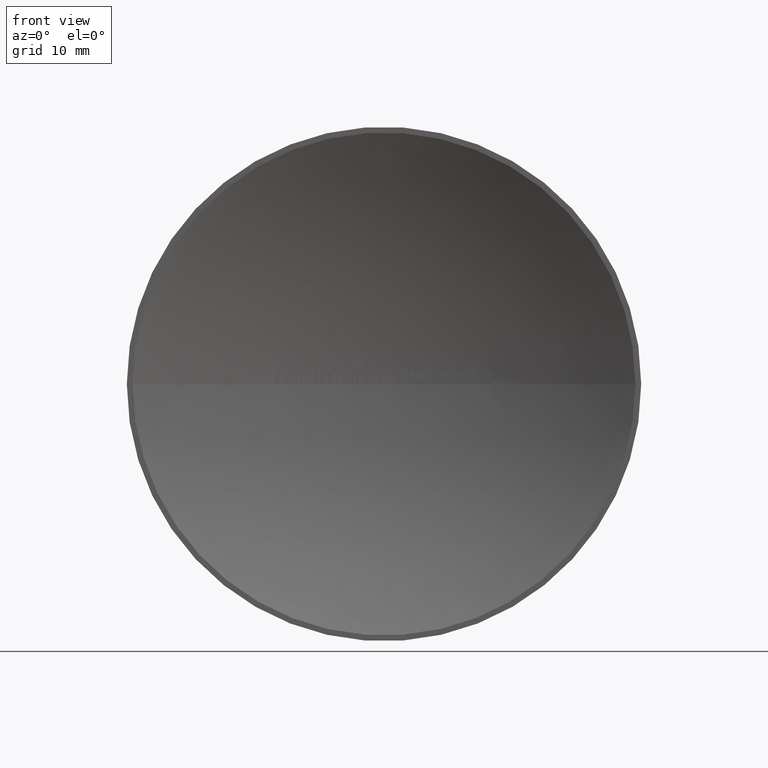
[diagram: clean part render]
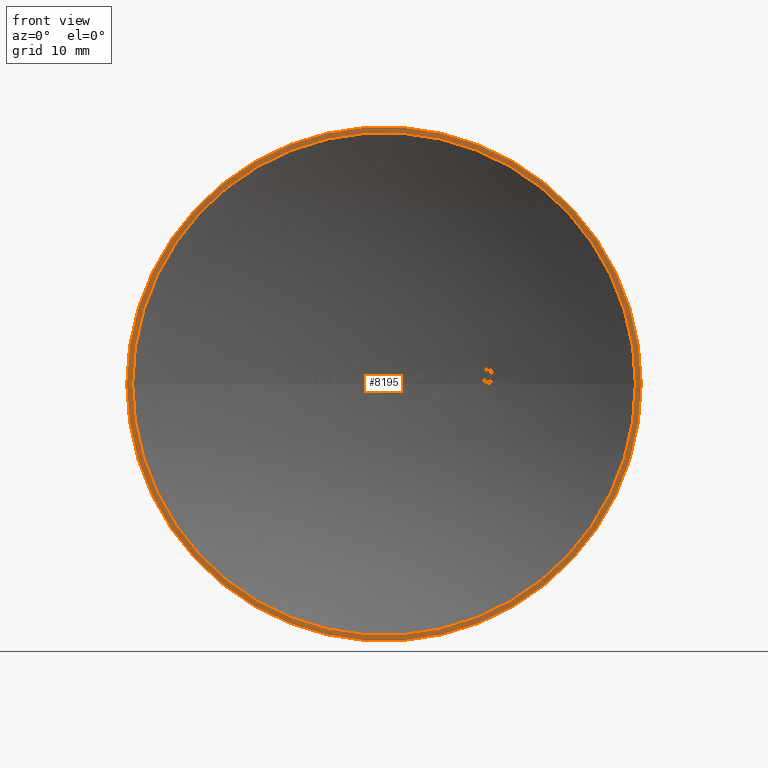
[diagram: same view with one face highlighted and labeled with its STEP entity id]
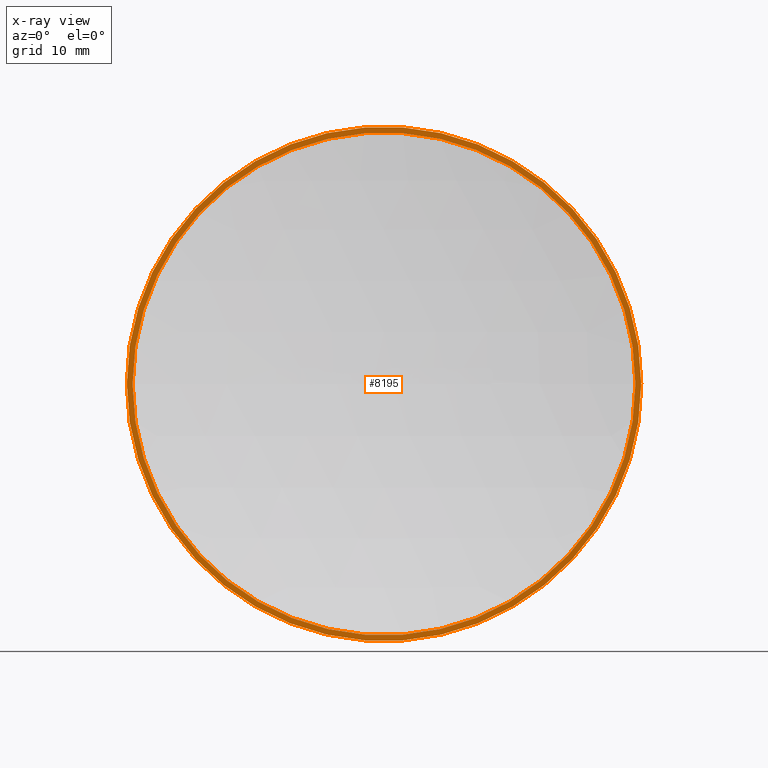
[diagram: x-ray of the same camera — body ghosted, the highlighted face saturated]
A machine part, front view. The second image highlights one B-rep face of the part: STEP entity #8195.
The next image is the same camera in x-ray: the body ghosted, the highlighted face saturated — about 0% of this face is hidden behind the body in this view.
In plain terms, the highlighted planar face has unit normal (-0, -1, 0).
Its self-contained STEP definition (entity closure, byte-faithful):
#353 = DIRECTION ( 'NONE',  ( 1.000000000000000000, -6.932614350277812000E-015, 0.0000000000000000000 ) ) ;
#362 = CIRCLE ( 'NONE', #9243, 21.20000000000003500 ) ;
#800 = CARTESIAN_POINT ( 'NONE',  ( 21.19999999999999900, -3.856737457803261500E-015, 0.0000000000000000000 ) ) ;
#1027 = VERTEX_POINT ( 'NONE', #800 ) ;
#1397 = CIRCLE ( 'NONE', #1577, 20.72293415518182500 ) ;
#1483 = EDGE_LOOP ( 'NONE', ( #8822, #2661 ) ) ;
#1577 = AXIS2_PLACEMENT_3D ( 'NONE', #5094, #7981, #353 ) ;
#1698 = FACE_BOUND ( 'NONE', #3651, .T. ) ;
#2178 = CARTESIAN_POINT ( 'NONE',  ( -21.20000000000007000, 2.900861109939764400E-013, 2.596251214192394300E-015 ) ) ;
#2451 = AXIS2_PLACEMENT_3D ( 'NONE', #11081, #8279, #2630 ) ;
#2514 = CARTESIAN_POINT ( 'NONE',  ( -3.466307175138799600E-014, 1.431146867680865900E-013, 0.0000000000000000000 ) ) ;
#2630 = DIRECTION ( 'NONE',  ( 1.000000000000000000, -6.932614350277811200E-015, 0.0000000000000000000 ) ) ;
#2661 = ORIENTED_EDGE ( 'NONE', *, *, #9082, .T. ) ;
#2777 = CARTESIAN_POINT ( 'NONE',  ( -3.466307175138799600E-014, 1.431146867680865900E-013, 0.0000000000000000000 ) ) ;
#3182 = AXIS2_PLACEMENT_3D ( 'NONE', #2514, #3513, #9120 ) ;
#3513 = DIRECTION ( 'NONE',  ( -6.932614350277811200E-015, -1.000000000000000000, -0.0000000000000000000 ) ) ;
#3651 = EDGE_LOOP ( 'NONE', ( #11784, #6313 ) ) ;
#3948 = DIRECTION ( 'NONE',  ( 1.000000000000000000, -6.932614350277812000E-015, 0.0000000000000000000 ) ) ;
#4584 = EDGE_CURVE ( 'NONE', #6435, #11934, #5396, .T. ) ;
#4808 = AXIS2_PLACEMENT_3D ( 'NONE', #8643, #9596, #3948 ) ;
#5073 = VERTEX_POINT ( 'NONE', #2178 ) ;
#5094 = CARTESIAN_POINT ( 'NONE',  ( -3.466307175138804000E-014, 1.370431546021677600E-013, 0.0000000000000000000 ) ) ;
#5227 = FACE_OUTER_BOUND ( 'NONE', #1483, .T. ) ;
#5396 = CIRCLE ( 'NONE', #4808, 20.72293415518182500 ) ;
#5427 = PLANE ( 'NONE',  #2451 ) ;
#6313 = ORIENTED_EDGE ( 'NONE', *, *, #8952, .F. ) ;
#6435 = VERTEX_POINT ( 'NONE', #7774 ) ;
#7418 = CIRCLE ( 'NONE', #3182, 21.20000000000003500 ) ;
#7774 = CARTESIAN_POINT ( 'NONE',  ( -20.72293415518153000, 2.826009576832199400E-013, 0.0000000000000000000 ) ) ;
#7981 = DIRECTION ( 'NONE',  ( -6.932614350277811200E-015, -1.000000000000000000, -0.0000000000000000000 ) ) ;
#8195 = ADVANCED_FACE ( 'NONE', ( #5227, #1698 ), #5427, .T. ) ;
#8279 = DIRECTION ( 'NONE',  ( -6.932614350277811200E-015, -1.000000000000000000, 0.0000000000000000000 ) ) ;
#8339 = DIRECTION ( 'NONE',  ( 1.000000000000000000, -6.932614350277812000E-015, 0.0000000000000000000 ) ) ;
#8643 = CARTESIAN_POINT ( 'NONE',  ( -3.466307175138804000E-014, 1.370431546021677600E-013, 0.0000000000000000000 ) ) ;
#8822 = ORIENTED_EDGE ( 'NONE', *, *, #10744, .T. ) ;
#8952 = EDGE_CURVE ( 'NONE', #11934, #6435, #1397, .T. ) ;
#9082 = EDGE_CURVE ( 'NONE', #5073, #1027, #362, .T. ) ;
#9120 = DIRECTION ( 'NONE',  ( 1.000000000000000000, -6.932614350277812000E-015, 0.0000000000000000000 ) ) ;
#9243 = AXIS2_PLACEMENT_3D ( 'NONE', #2777, #12045, #8339 ) ;
#9265 = CARTESIAN_POINT ( 'NONE',  ( 20.72293415518179000, -3.310478050953976700E-015, -2.537827498208437800E-015 ) ) ;
#9596 = DIRECTION ( 'NONE',  ( -6.932614350277811200E-015, -1.000000000000000000, -0.0000000000000000000 ) ) ;
#10744 = EDGE_CURVE ( 'NONE', #1027, #5073, #7418, .T. ) ;
#11081 = CARTESIAN_POINT ( 'NONE',  ( 21.19999999999999900, -6.935580975598752900E-015, 0.0000000000000000000 ) ) ;
#11784 = ORIENTED_EDGE ( 'NONE', *, *, #4584, .F. ) ;
#11934 = VERTEX_POINT ( 'NONE', #9265 ) ;
#12045 = DIRECTION ( 'NONE',  ( -6.932614350277811200E-015, -1.000000000000000000, -0.0000000000000000000 ) ) ;